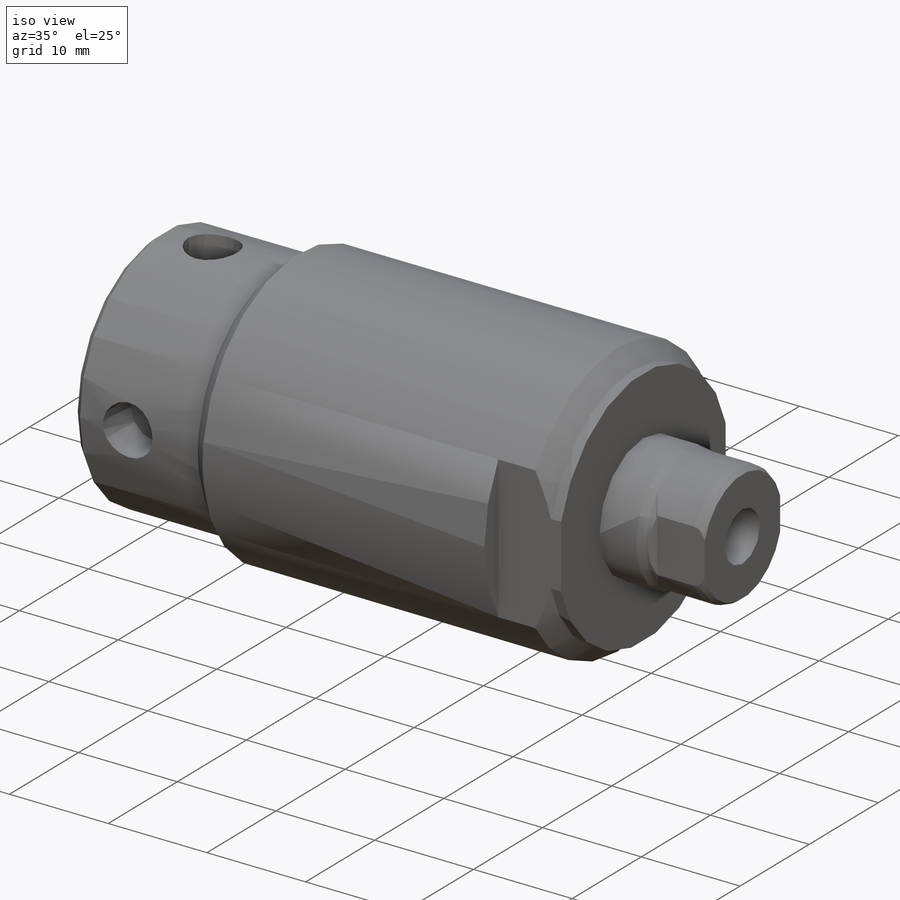
[diagram: iso view]
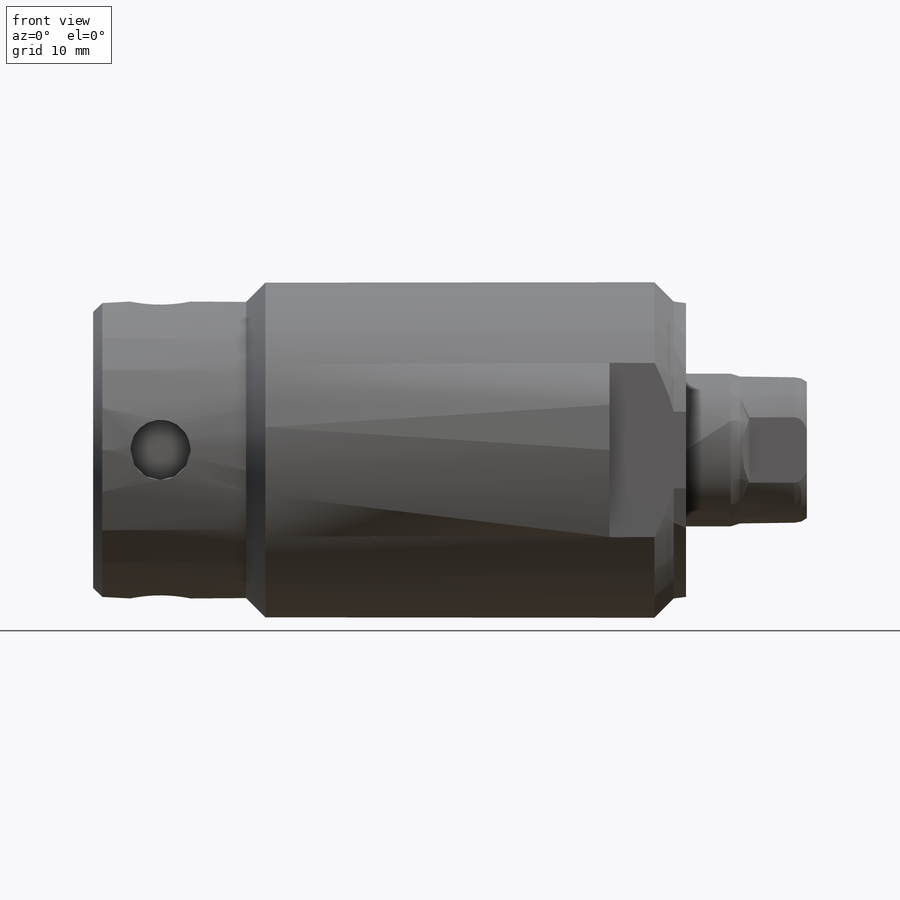
[diagram: front view]
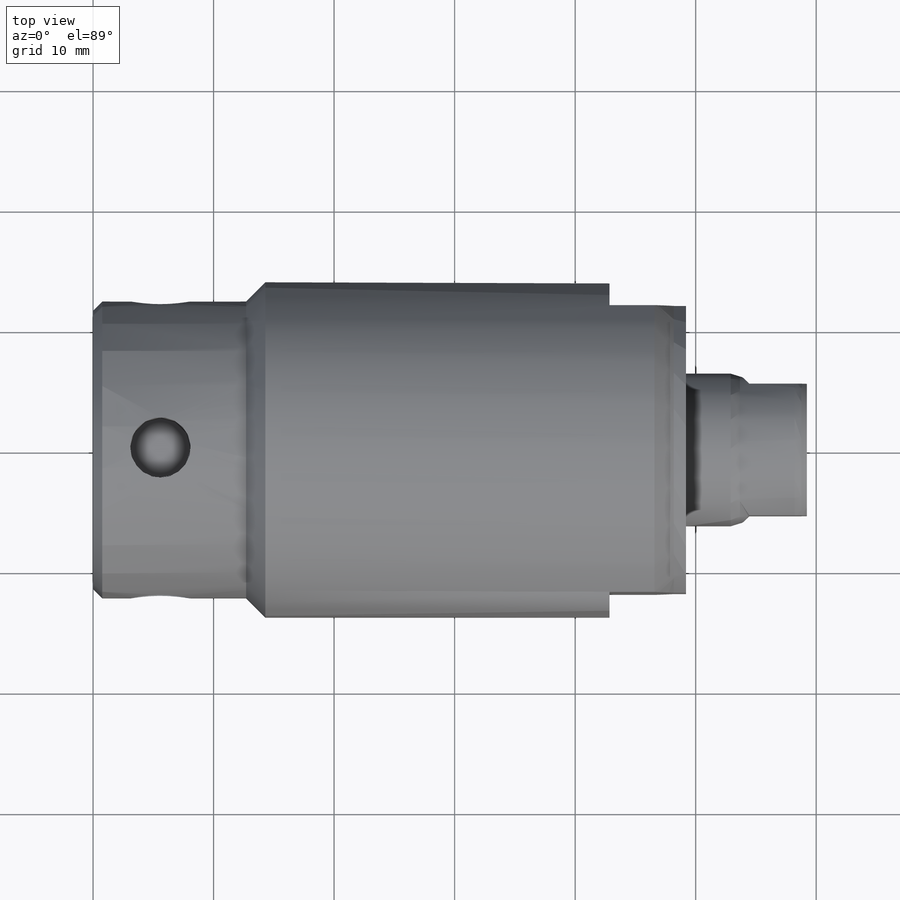
[diagram: top view]
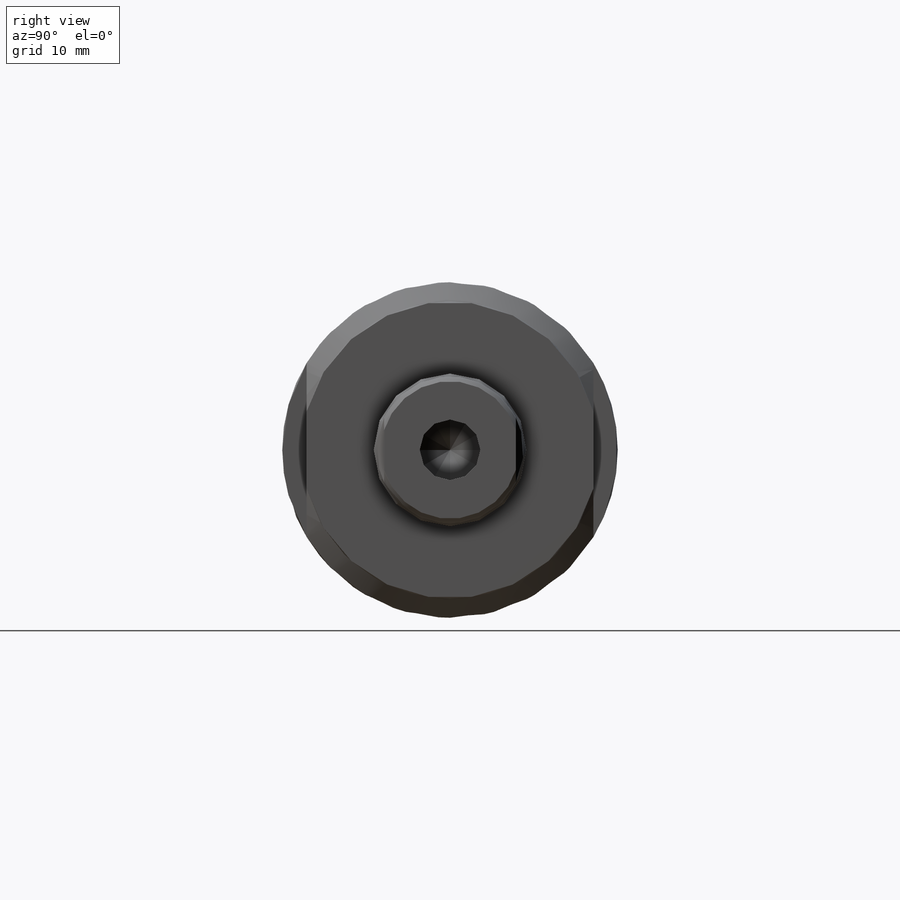
[diagram: right view]
SOLIDWORKS PART (.sldprt)
format: sldprt  version: not decoded by parser v0  size: 250,368 bytes
history: native  units: mm
features: sketch x7, cut_revolve x2, cut_extrude x2, material x1, plane x1, revolve x1, chamfer x1, hole x1, pattern_circular x1 (+13 scaffold rows collapsed)
feature tree (30):
  scaffold x13  (default folders/planes/origin — collapsed)
  material  "Alloy Steel"
  plane  "Plane1"
  sketch  "Sketch1"  dims[c1.D6=1.524mm c1.D1=27.838mm c1.D2=~1.077631mm c2.D2=45.0deg c2.D3=0.762mm c2.D4=12.192mm c2.D5=1.016mm c2.D7=10.033mm c2.D8=49.1998mm c3.D2=24.638mm c3.D3=~1.752694mm c4.D3=45.0deg c4.D9=12.7mm c4.D10=1.016mm c4.D11=12.6746mm c4.D12=~2.037933mm c5.D12=45.0deg c5.D13=5.5626mm c6.D12=0.762mm]
  revolve  "Revolve1"  Angle=360deg
  sketch  "Sketch2"  dims[c1.D1=9.906mm c1.D2=10.5664mm c1.D3=8.8392mm c1.D4=0.5334mm c2.D4=45.0deg c2.D5=0.127mm]
  cut_revolve  "Cut-Revolve1"  Angle=360deg
  sketch  "Sketch3"  dims[c1.D1=5.0292mm c1.D2=11.176mm c1.D3=~2.015009mm c2.D3=59.0deg]
  cut_revolve  "Cut-Revolve2"  Angle=360deg
  chamfer  "Chamfer1"  Distance=0.762mm Angle=45deg
  sketch  "Sketch4"  dims[c1.D1=~0.83012mm c2.D1=45.0deg c2.D2=10.922mm c2.D3=4.7752mm]
  cut_extrude  "Cut-Extrude1"  [1 undecoded]
  hole  "Hole1"  Diameter=5.0038mm Depth=4.064mm
  sketch  "3DSketch1"  dims[D1=5.588mm]
  sketch  "Sketch5"  dims[Diameter=5.0038mm Depth=4.064mm]
  pattern_circular  "CirPattern1"  Count=4 Angle=360deg
  sketch  "Sketch6"  dims[D1=6.35mm D2=23.8mm]
  cut_extrude  "Cut-Extrude2"  [1 undecoded]
decode coverage: 13 of 15 modeling features carry decoded parameters
note: ~ marks probable driven/reference dimensions
note: 2 parameter values undecoded
note: suppression state not decoded; provenance and decode notes live in map.json
